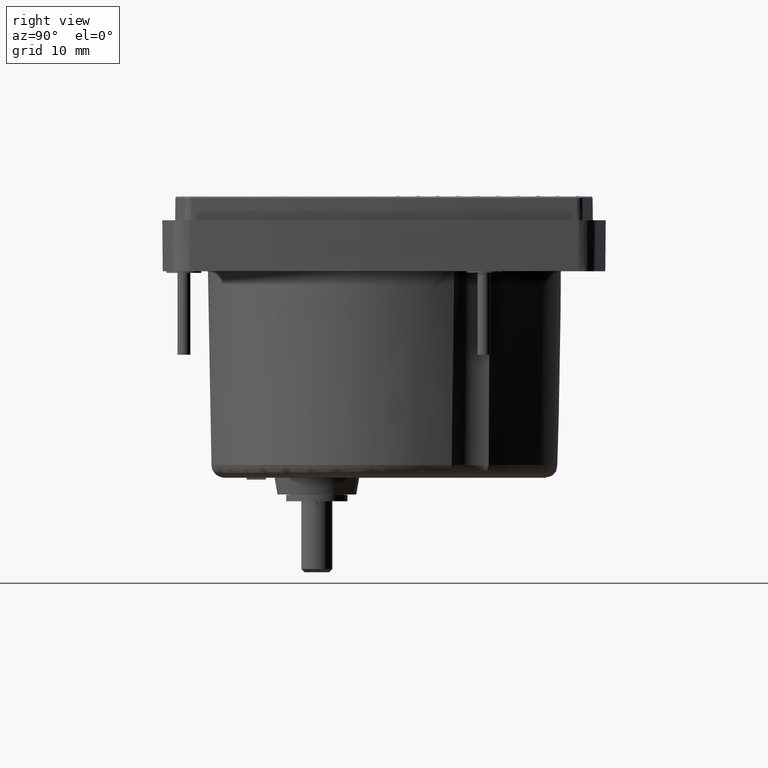
[diagram: clean part render]
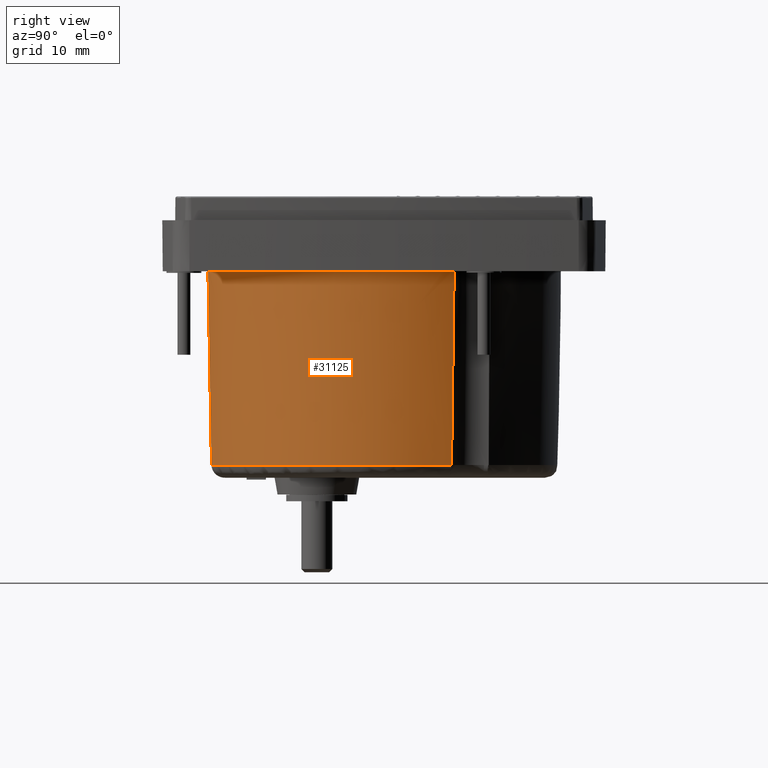
[diagram: same view with one face highlighted and labeled with its STEP entity id]
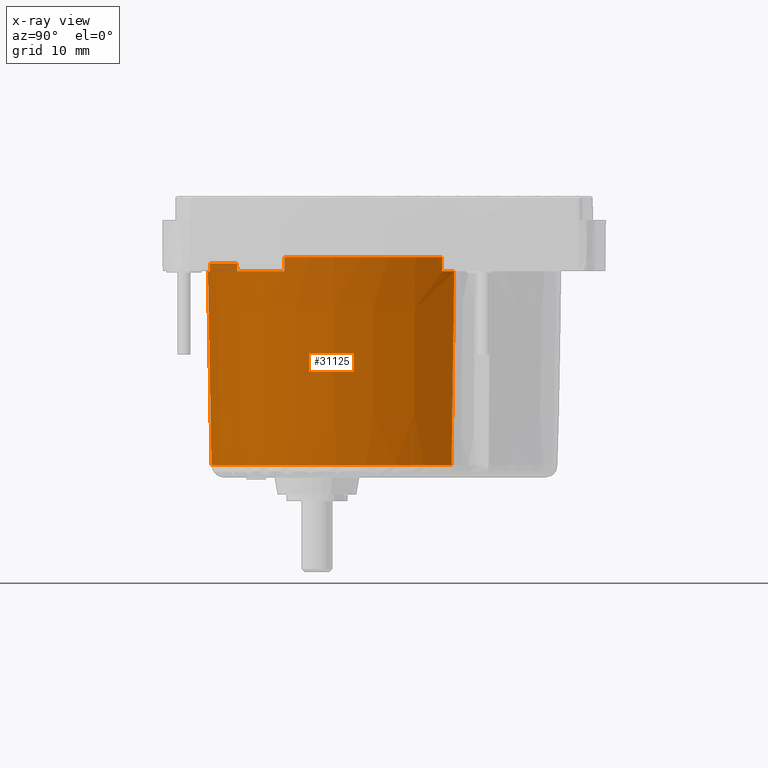
[diagram: x-ray of the same camera — body ghosted, the highlighted face saturated]
A machine part, right view. The second image highlights one B-rep face of the part: STEP entity #31125.
The next image is the same camera in x-ray: the body ghosted, the highlighted face saturated — about 0% of this face is hidden behind the body in this view.
In plain terms, the highlighted conical surface has half-angle 1 deg.
Its self-contained STEP definition (entity closure, byte-faithful):
#92 = EDGE_CURVE ( 'NONE', #30345, #43934, #41017, .T. ) ;
#163 = DIRECTION ( 'NONE',  ( 0.000000000000000000, 0.000000000000000000, 1.000000000000000000 ) ) ;
#272 = ORIENTED_EDGE ( 'NONE', *, *, #10715, .T. ) ;
#938 = EDGE_CURVE ( 'NONE', #13005, #20001, #35172, .T. ) ;
#1291 = VERTEX_POINT ( 'NONE', #6059 ) ;
#1727 = AXIS2_PLACEMENT_3D ( 'NONE', #1806, #32223, #43511 ) ;
#1775 = ORIENTED_EDGE ( 'NONE', *, *, #31528, .T. ) ;
#1806 = CARTESIAN_POINT ( 'NONE',  ( 0.5704286375722834590, -0.2090036857513889734, -0.01574842519686549258 ) ) ;
#3050 = DIRECTION ( 'NONE',  ( -0.000000000000000000, 3.940052486423924545E-18, -1.000000000000000000 ) ) ;
#3361 = ORIENTED_EDGE ( 'NONE', *, *, #18686, .T. ) ;
#3411 = CARTESIAN_POINT ( 'NONE',  ( 0.5704286375722834590, -0.2090036857513889734, -0.01574842519686551340 ) ) ;
#5161 = AXIS2_PLACEMENT_3D ( 'NONE', #15137, #163, #14405 ) ;
#5233 = ORIENTED_EDGE ( 'NONE', *, *, #28550, .T. ) ;
#5270 = CARTESIAN_POINT ( 'NONE',  ( 0.7004911025187446905, -1.269151310528951582, -0.8040661368211401427 ) ) ;
#5529 = VERTEX_POINT ( 'NONE', #41297 ) ;
#5799 = CARTESIAN_POINT ( 'NONE',  ( 0.5704286375722834590, -0.2090036857513889734, 0.07086574803151575452 ) ) ;
#5824 = CARTESIAN_POINT ( 'NONE',  ( 1.563976109384537461, 0.2190947713478960668, -0.01574842519613068800 ) ) ;
#5924 = ORIENTED_EDGE ( 'NONE', *, *, #31313, .T. ) ;
#6059 = CARTESIAN_POINT ( 'NONE',  ( 1.177713502510826737, -1.105326695160535388, 0.03149566929134822724 ) ) ;
#6225 = CARTESIAN_POINT ( 'NONE',  ( 0.6985024779702320163, -1.276323256175724508, -0.4099072810090028662 ) ) ;
#6489 = CARTESIAN_POINT ( 'NONE',  ( 0.5704286375722834590, -0.2090036857513889734, -0.01574842519686549258 ) ) ;
#6494 = AXIS2_PLACEMENT_3D ( 'NONE', #3411, #13976, #28932 ) ;
#6797 = CARTESIAN_POINT ( 'NONE',  ( 1.592522290306336519, 0.1455797779839598516, -0.01574842519686551340 ) ) ;
#6818 = CARTESIAN_POINT ( 'NONE',  ( 0.5704286375722834590, -0.2090036857513889734, 0.07086574803151693414 ) ) ;
#7260 = EDGE_CURVE ( 'NONE', #24540, #23193, #27286, .T. ) ;
#7327 = CIRCLE ( 'NONE', #8870, 1.082677165354330784 ) ;
#7832 = DIRECTION ( 'NONE',  ( 0.000000000000000000, -3.940052486423924545E-18, 1.000000000000000000 ) ) ;
#8238 = VERTEX_POINT ( 'NONE', #14761 ) ;
#8503 = B_SPLINE_CURVE_WITH_KNOTS ( 'NONE', 3,
 ( #24366, #19972, #15797, #34946 ),
 .UNSPECIFIED., .F., .F.,
 ( 4, 4 ),
 ( 0.000000000000000000, 1.000000000000000000 ),
 .UNSPECIFIED. ) ;
#8870 = AXIS2_PLACEMENT_3D ( 'NONE', #17128, #47068, #12471 ) ;
#9356 = AXIS2_PLACEMENT_3D ( 'NONE', #5799, #7832, #17079 ) ;
#9563 = EDGE_CURVE ( 'NONE', #5529, #8238, #10328, .T. ) ;
#10261 = EDGE_LOOP ( 'NONE', ( #34059, #11179, #272, #12143, #5233, #17163, #3361, #30821, #5924, #38330, #1775, #43548 ) ) ;
#10328 = CIRCLE ( 'NONE', #1727, 1.081852516618506010 ) ;
#10715 = EDGE_CURVE ( 'NONE', #23193, #24742, #28864, .T. ) ;
#10736 = DIRECTION ( 'NONE',  ( -0.000000000000000000, 3.940052486423924545E-18, -1.000000000000000000 ) ) ;
#11179 = ORIENTED_EDGE ( 'NONE', *, *, #7260, .T. ) ;
#11348 = B_SPLINE_CURVE_WITH_KNOTS ( 'NONE', 3,
 ( #6797, #47306, #36736, #21276 ),
 .UNSPECIFIED., .F., .F.,
 ( 4, 4 ),
 ( 0.000000000000000000, 1.000000000000000000 ),
 .UNSPECIFIED. ) ;
#12143 = ORIENTED_EDGE ( 'NONE', *, *, #35047, .T. ) ;
#12176 = CIRCLE ( 'NONE', #5161, 1.061212311381397821 ) ;
#12471 = DIRECTION ( 'NONE',  ( -1.000000000000000000, -1.766263902812748755E-15, 2.755844794790427813E-15 ) ) ;
#13005 = VERTEX_POINT ( 'NONE', #32813 ) ;
#13976 = DIRECTION ( 'NONE',  ( -0.000000000000000000, 3.940052486423924545E-18, -1.000000000000000000 ) ) ;
#14405 = DIRECTION ( 'NONE',  ( -1.000000000000000000, 0.000000000000000000, 2.059416736398898916E-15 ) ) ;
#14761 = CARTESIAN_POINT ( 'NONE',  ( 1.177467265975265853, -1.104497388320214490, -0.01574842519686549258 ) ) ;
#15137 = CARTESIAN_POINT ( 'NONE',  ( 0.5704286375722834590, -0.2090036857513889734, -1.198224992633279529 ) ) ;
#15309 = VERTEX_POINT ( 'NONE', #36092 ) ;
#15561 = CARTESIAN_POINT ( 'NONE',  ( 1.465922340140720648, -0.8160423141541023329, -0.01574842519685425504 ) ) ;
#15797 = CARTESIAN_POINT ( 'NONE',  ( 1.177631484534546136, -1.105050231013506190, 0.01574763779527767193 ) ) ;
#15832 = VECTOR ( 'NONE', #23056, 39.37007874015748854 ) ;
#17079 = DIRECTION ( 'NONE',  ( 0.000000000000000000, -1.000000000000000000, -7.880104972847839846E-18 ) ) ;
#17128 = CARTESIAN_POINT ( 'NONE',  ( 0.5704286375722834590, -0.2090036857513889734, 0.03149566929134626353 ) ) ;
#17163 = ORIENTED_EDGE ( 'NONE', *, *, #92, .T. ) ;
#17351 = CARTESIAN_POINT ( 'NONE',  ( 0.6964582343150808041, -1.283490264755581034, -0.01574842519683216507 ) ) ;
#18664 = LINE ( 'NONE', #33878, #15832 ) ;
#18686 = EDGE_CURVE ( 'NONE', #43934, #13005, #11348, .T. ) ;
#18996 = CARTESIAN_POINT ( 'NONE',  ( 1.467442701318104392, -0.8164937131059685216, 0.07086574803151594881 ) ) ;
#19448 = AXIS2_PLACEMENT_3D ( 'NONE', #6489, #3050, #40349 ) ;
#19492 = CARTESIAN_POINT ( 'NONE',  ( 1.466935818435243011, -0.8163434512592377956, 0.04199435695538811242 ) ) ;
#19972 = CARTESIAN_POINT ( 'NONE',  ( 1.177549405685536454, -1.104773795392969937, -3.937007938852414417E-07 ) ) ;
#20001 = VERTEX_POINT ( 'NONE', #33841 ) ;
#20230 = CARTESIAN_POINT ( 'NONE',  ( 0.6964582343150808041, -1.283490264755581034, -0.01574842519683216507 ) ) ;
#21276 = CARTESIAN_POINT ( 'NONE',  ( 1.594107677078466567, 0.1456222974613590737, 0.07086574803151023116 ) ) ;
#21776 = DIRECTION ( 'NONE',  ( 8.825717569589580135E-16, -1.000000000000000000, -7.880104972847839846E-18 ) ) ;
#23056 = DIRECTION ( 'NONE',  ( 0.008725405116444134163, -0.01609506024895585724, 0.9998323941247035940 ) ) ;
#23193 = VERTEX_POINT ( 'NONE', #17351 ) ;
#24366 = CARTESIAN_POINT ( 'NONE',  ( 1.177467265975265853, -1.104497388320214490, -0.01574842519686549258 ) ) ;
#24540 = VERTEX_POINT ( 'NONE', #33544 ) ;
#24742 = VERTEX_POINT ( 'NONE', #43561 ) ;
#24939 = AXIS2_PLACEMENT_3D ( 'NONE', #6818, #10736, #21776 ) ;
#25862 = CARTESIAN_POINT ( 'NONE',  ( 1.466429031332496580, -0.8161929849186244645, 0.01312296587926133594 ) ) ;
#25902 = VERTEX_POINT ( 'NONE', #34821 ) ;
#27286 = CIRCLE ( 'NONE', #19448, 1.081852516618506010 ) ;
#28550 = EDGE_CURVE ( 'NONE', #15309, #30345, #30350, .T. ) ;
#28864 = B_SPLINE_CURVE_WITH_KNOTS ( 'NONE', 3,
 ( #20230, #6225, #5270, #35930 ),
 .UNSPECIFIED., .F., .F.,
 ( 4, 4 ),
 ( 0.000000000000000000, 1.000000000000000000 ),
 .UNSPECIFIED. ) ;
#28932 = DIRECTION ( 'NONE',  ( 1.332020579997464554E-14, -1.000000000000000000, -3.945558590039882935E-18 ) ) ;
#30345 = VERTEX_POINT ( 'NONE', #30503 ) ;
#30350 = B_SPLINE_CURVE_WITH_KNOTS ( 'NONE', 3,
 ( #43592, #39437, #47517, #5824 ),
 .UNSPECIFIED., .F., .F.,
 ( 4, 4 ),
 ( 0.000000000000000000, 1.000000000000000000 ),
 .UNSPECIFIED. ) ;
#30503 = CARTESIAN_POINT ( 'NONE',  ( 1.563976109384537461, 0.2190947713478960668, -0.01574842519613068800 ) ) ;
#30821 = ORIENTED_EDGE ( 'NONE', *, *, #938, .T. ) ;
#31125 = ADVANCED_FACE ( 'NONE', ( #32048 ), #42294, .T. ) ;
#31313 = EDGE_CURVE ( 'NONE', #20001, #5529, #43611, .T. ) ;
#31528 = EDGE_CURVE ( 'NONE', #8238, #1291, #8503, .T. ) ;
#32048 = FACE_OUTER_BOUND ( 'NONE', #10261, .T. ) ;
#32223 = DIRECTION ( 'NONE',  ( -0.000000000000000000, 3.940052486423924545E-18, -1.000000000000000000 ) ) ;
#32813 = CARTESIAN_POINT ( 'NONE',  ( 1.594107677078466567, 0.1456222974613590737, 0.07086574803151023116 ) ) ;
#33544 = CARTESIAN_POINT ( 'NONE',  ( 0.7743971765825334863, -1.271454485933120049, -0.01574842519686549258 ) ) ;
#33841 = CARTESIAN_POINT ( 'NONE',  ( 1.467442701318104392, -0.8164937131059685216, 0.07086574803151594881 ) ) ;
#33878 = CARTESIAN_POINT ( 'NONE',  ( 0.7743971765825334863, -1.271454485932641765, -0.01574842519684301403 ) ) ;
#34059 = ORIENTED_EDGE ( 'NONE', *, *, #38240, .F. ) ;
#34821 = CARTESIAN_POINT ( 'NONE',  ( 0.7748094695490256312, -1.272215009948129749, 0.03149566929135193261 ) ) ;
#34946 = CARTESIAN_POINT ( 'NONE',  ( 1.177713502510826737, -1.105326695160535388, 0.03149566929134822724 ) ) ;
#35047 = EDGE_CURVE ( 'NONE', #24742, #15309, #12176, .T. ) ;
#35172 = CIRCLE ( 'NONE', #24939, 1.083364372634185058 ) ;
#35930 = CARTESIAN_POINT ( 'NONE',  ( 0.7024240842391888950, -1.261975087000438922, -1.198224992726131921 ) ) ;
#36092 = CARTESIAN_POINT ( 'NONE',  ( 1.548326349033533500, 0.2031705925722295525, -1.198224992633031505 ) ) ;
#36736 = CARTESIAN_POINT ( 'NONE',  ( 1.593579175182949559, 0.1456083466064895804, 0.04199435695538811242 ) ) ;
#38240 = EDGE_CURVE ( 'NONE', #24540, #25902, #18664, .T. ) ;
#38330 = ORIENTED_EDGE ( 'NONE', *, *, #9563, .T. ) ;
#39437 = CARTESIAN_POINT ( 'NONE',  ( 1.553574644864615717, 0.2084327279149353895, -0.8040661368211413640 ) ) ;
#40349 = DIRECTION ( 'NONE',  ( 6.306580850319748381E-14, -1.000000000000000000, -3.945558590039882935E-18 ) ) ;
#41017 = CIRCLE ( 'NONE', #6494, 1.081852516618506010 ) ;
#41297 = CARTESIAN_POINT ( 'NONE',  ( 1.465922340140720648, -0.8160423141541023329, -0.01574842519685425504 ) ) ;
#42294 = CONICAL_SURFACE ( 'NONE', #9356, 1.083364372634185058, 0.01745329250000015112 ) ;
#43049 = EDGE_CURVE ( 'NONE', #1291, #25902, #7327, .T. ) ;
#43511 = DIRECTION ( 'NONE',  ( 8.017375054961041544E-15, -1.000000000000000000, -3.945558590039882935E-18 ) ) ;
#43548 = ORIENTED_EDGE ( 'NONE', *, *, #43049, .T. ) ;
#43561 = CARTESIAN_POINT ( 'NONE',  ( 0.7024240842391888950, -1.261975087000438922, -1.198224992726131921 ) ) ;
#43592 = CARTESIAN_POINT ( 'NONE',  ( 1.548326349033533500, 0.2031705925722295525, -1.198224992633031505 ) ) ;
#43611 = B_SPLINE_CURVE_WITH_KNOTS ( 'NONE', 3,
 ( #18996, #19492, #25862, #15561 ),
 .UNSPECIFIED., .F., .F.,
 ( 4, 4 ),
 ( 0.000000000000000000, 1.000000000000000000 ),
 .UNSPECIFIED. ) ;
#43934 = VERTEX_POINT ( 'NONE', #44415 ) ;
#44415 = CARTESIAN_POINT ( 'NONE',  ( 1.592522290306336519, 0.1455797779839598516, -0.01574842519686551340 ) ) ;
#47068 = DIRECTION ( 'NONE',  ( -0.000000000000000000, -0.000000000000000000, -1.000000000000000000 ) ) ;
#47306 = CARTESIAN_POINT ( 'NONE',  ( 1.593050712877378539, 0.1455941734361085316, 0.01312296587926133594 ) ) ;
#47517 = CARTESIAN_POINT ( 'NONE',  ( 1.558791419715025883, 0.2137409001159238653, -0.4099072810090034769 ) ) ;